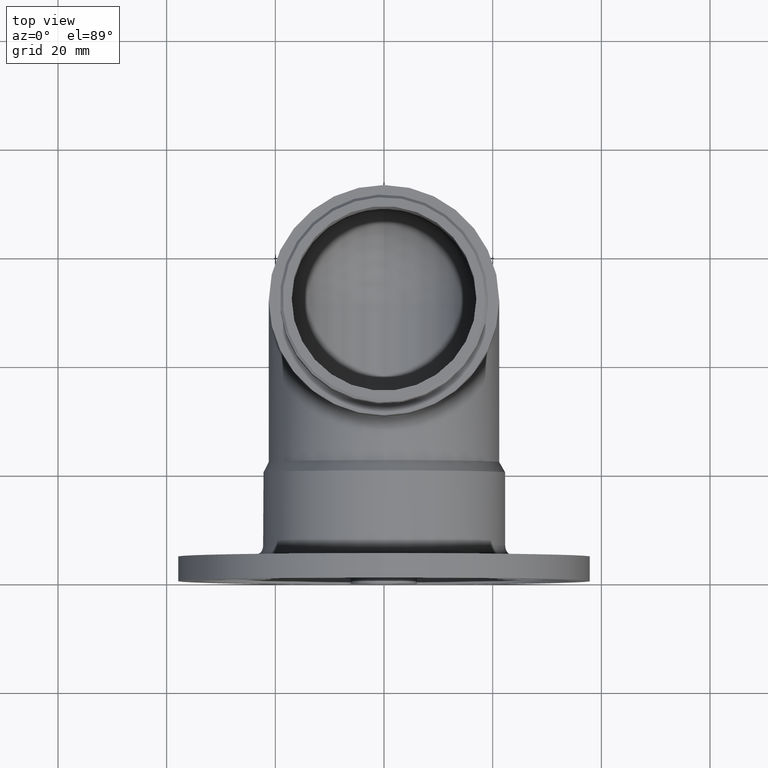
[diagram: clean part render]
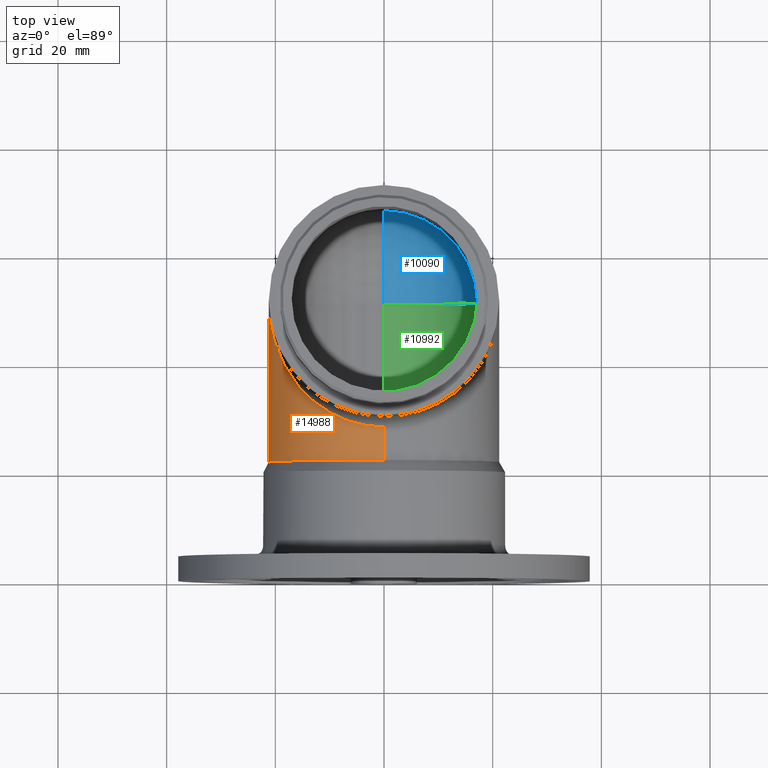
[diagram: same view with three faces highlighted in distinct colors, each labeled with its STEP entity id]
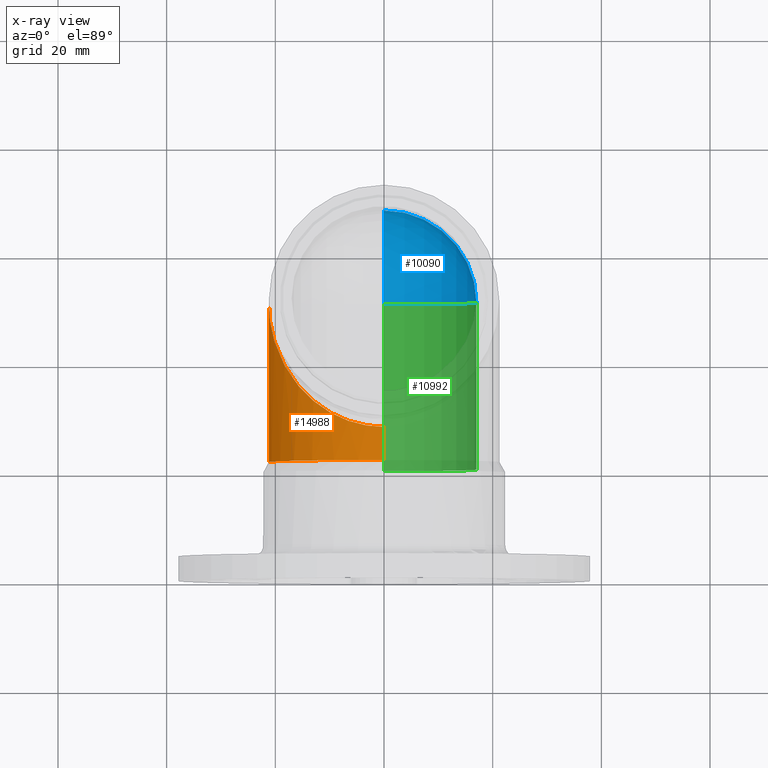
[diagram: x-ray of the same camera — body ghosted, the three highlighted faces saturated]
A machine part, top view with three faces highlighted in distinct colors.
The next image is the same camera in x-ray (body ghosted, the three faces saturated) — at least one of them is partly hidden behind the body in this view.
Their STEP definitions:

[orange] entity #14988 — the highlighted cylindrical surface (partial cylindrical patch) has radius 21.2 mm, axis along (0, -1, 0).
#192 = CARTESIAN_POINT ( 'NONE',  ( -21.19999999999999600, 21.90525588832578700, -6.938893903907228400E-015 ) ) ;
#601 = DIRECTION ( 'NONE',  ( -2.192750485135992100E-016, -1.000000000000000000, -0.0000000000000000000 ) ) ;
#1264 = CARTESIAN_POINT ( 'NONE',  ( -21.19999999999999600, 111.1626550446192600, -6.938893903907228400E-015 ) ) ;
#1359 = DIRECTION ( 'NONE',  ( 0.0000000000000000000, 0.0000000000000000000, -1.000000000000000000 ) ) ;
#1761 = CARTESIAN_POINT ( 'NONE',  ( 3.469446951953614200E-015, 111.1626550446192600, 21.19999999999999600 ) ) ;
#1785 = VERTEX_POINT ( 'NONE', #192 ) ;
#1985 = FACE_OUTER_BOUND ( 'NONE', #14198, .T. ) ;
#2359 = CYLINDRICAL_SURFACE ( 'NONE', #13040, 21.19999999999999900 ) ;
#2383 = CARTESIAN_POINT ( 'NONE',  ( 3.469446951953612200E-015, 21.90525588832578300, 21.20000000000000300 ) ) ;
#2555 = VERTEX_POINT ( 'NONE', #3334 ) ;
#3334 = CARTESIAN_POINT ( 'NONE',  ( -21.19999999999999600, 51.20000000000002400, -3.469446951953614200E-015 ) ) ;
#3768 = CARTESIAN_POINT ( 'NONE',  ( 3.469446951953614200E-015, 28.00000000000002500, 21.19999999999999600 ) ) ;
#4409 = VECTOR ( 'NONE', #14081, 1000.000000000000000 ) ;
#4805 = VERTEX_POINT ( 'NONE', #2383 ) ;
#4919 = DIRECTION ( 'NONE',  ( 0.0000000000000000000, -1.000000000000000000, 0.0000000000000000000 ) ) ;
#5417 = CARTESIAN_POINT ( 'NONE',  ( -12.41867247769037700, 28.00000000000002500, 21.19999999999999200 ) ) ;
#5956 = LINE ( 'NONE', #1264, #13088 ) ;
#6174 = ORIENTED_EDGE ( 'NONE', *, *, #15889, .T. ) ;
#6247 = DIRECTION ( 'NONE',  ( 0.0000000000000000000, -1.000000000000000000, 0.0000000000000000000 ) ) ;
#6835 = CARTESIAN_POINT ( 'NONE',  ( 4.803276047615440900E-015, 21.90525588832578300, 0.0000000000000000000 ) ) ;
#8559 = VERTEX_POINT ( 'NONE', #3768 ) ;
#8716 = CARTESIAN_POINT ( 'NONE',  ( 3.469446951953614200E-015, 111.1626550446192600, -3.469446951953614200E-015 ) ) ;
#9439 = EDGE_CURVE ( 'NONE', #8559, #4805, #11741, .T. ) ;
#9999 = ORIENTED_EDGE ( 'NONE', *, *, #14022, .T. ) ;
#10811 = ORIENTED_EDGE ( 'NONE', *, *, #11052, .F. ) ;
#11048 = CIRCLE ( 'NONE', #15946, 21.20000000000000300 ) ;
#11052 = EDGE_CURVE ( 'NONE', #4805, #1785, #11048, .T. ) ;
#11119 = ORIENTED_EDGE ( 'NONE', *, *, #9439, .F. ) ;
#11729 =( BOUNDED_CURVE ( )  B_SPLINE_CURVE ( 3, ( #12502, #5417, #15027, #11832 ),
 .UNSPECIFIED., .F., .F. ) 
 B_SPLINE_CURVE_WITH_KNOTS ( ( 4, 4 ),
 ( 7.019610720368544500E-018, 1.570796326794896600 ),
 .UNSPECIFIED. ) 
 CURVE ( )  GEOMETRIC_REPRESENTATION_ITEM ( )  RATIONAL_B_SPLINE_CURVE ( ( 1.000000000000000000, 0.8047378541243649400, 0.8047378541243649400, 1.000000000000000000 ) ) 
 REPRESENTATION_ITEM ( '' )  );
#11741 = LINE ( 'NONE', #1761, #4409 ) ;
#11832 = CARTESIAN_POINT ( 'NONE',  ( -21.19999999999999600, 51.20000000000002400, -3.469446951953614200E-015 ) ) ;
#12502 = CARTESIAN_POINT ( 'NONE',  ( 3.469446951953614200E-015, 28.00000000000002500, 21.19999999999999600 ) ) ;
#13040 = AXIS2_PLACEMENT_3D ( 'NONE', #8716, #6247, #1359 ) ;
#13088 = VECTOR ( 'NONE', #4919, 1000.000000000000000 ) ;
#14022 = EDGE_CURVE ( 'NONE', #2555, #1785, #5956, .T. ) ;
#14081 = DIRECTION ( 'NONE',  ( 0.0000000000000000000, -1.000000000000000000, 0.0000000000000000000 ) ) ;
#14198 = EDGE_LOOP ( 'NONE', ( #10811, #11119, #6174, #9999 ) ) ;
#14988 = ADVANCED_FACE ( 'NONE', ( #1985 ), #2359, .T. ) ;
#15027 = CARTESIAN_POINT ( 'NONE',  ( -21.19999999999998900, 37.60975464705583700, 12.41867247769038200 ) ) ;
#15436 = DIRECTION ( 'NONE',  ( 1.000000000000000000, -1.636531581110195200E-016, 0.0000000000000000000 ) ) ;
#15889 = EDGE_CURVE ( 'NONE', #8559, #2555, #11729, .T. ) ;
#15946 = AXIS2_PLACEMENT_3D ( 'NONE', #6835, #601, #15436 ) ;

[blue] entity #10090 — the highlighted spherical surface has radius 17 mm.
#505 = VERTEX_POINT ( 'NONE', #3880 ) ;
#1801 = CIRCLE ( 'NONE', #15842, 17.00000000000000000 ) ;
#2865 = SPHERICAL_SURFACE ( 'NONE', #8319, 17.00000000000000000 ) ;
#3388 = EDGE_CURVE ( 'NONE', #9712, #505, #1801, .T. ) ;
#3586 = DIRECTION ( 'NONE',  ( 0.0000000000000000000, 4.081702296416016500E-016, -1.000000000000000000 ) ) ;
#3616 = FACE_OUTER_BOUND ( 'NONE', #14338, .T. ) ;
#3880 = CARTESIAN_POINT ( 'NONE',  ( 3.469446951953614200E-015, 68.20000000000001700, -4.427692703177301300E-016 ) ) ;
#3970 = CARTESIAN_POINT ( 'NONE',  ( 3.469446951953614200E-015, 51.20000000000001700, -3.469446951953614200E-015 ) ) ;
#5012 = DIRECTION ( 'NONE',  ( 0.0000000000000000000, -1.000000000000000000, 0.0000000000000000000 ) ) ;
#6108 = DIRECTION ( 'NONE',  ( 1.000000000000000000, 0.0000000000000000000, 0.0000000000000000000 ) ) ;
#6200 = VERTEX_POINT ( 'NONE', #15084 ) ;
#6335 = AXIS2_PLACEMENT_3D ( 'NONE', #10999, #5012, #13590 ) ;
#7014 = DIRECTION ( 'NONE',  ( 0.0000000000000000000, 0.0000000000000000000, 1.000000000000000000 ) ) ;
#7632 = CARTESIAN_POINT ( 'NONE',  ( 17.00000000000000700, 51.20000000000002400, -3.469446951953615000E-015 ) ) ;
#7678 = CIRCLE ( 'NONE', #10139, 17.00000000000000000 ) ;
#8319 = AXIS2_PLACEMENT_3D ( 'NONE', #3970, #6108, #3586 ) ;
#8466 = EDGE_CURVE ( 'NONE', #505, #6200, #7678, .T. ) ;
#9712 = VERTEX_POINT ( 'NONE', #7632 ) ;
#10090 = ADVANCED_FACE ( 'NONE', ( #3616 ), #2865, .F. ) ;
#10139 = AXIS2_PLACEMENT_3D ( 'NONE', #13322, #14473, #7014 ) ;
#10999 = CARTESIAN_POINT ( 'NONE',  ( 3.469446951953614200E-015, 51.20000000000001700, -3.469446951953614200E-015 ) ) ;
#11132 = CARTESIAN_POINT ( 'NONE',  ( 5.352986175202233300E-015, 51.20000000000001700, -3.469446951953614200E-015 ) ) ;
#11326 = ORIENTED_EDGE ( 'NONE', *, *, #3388, .T. ) ;
#12370 = DIRECTION ( 'NONE',  ( 0.0000000000000000000, -2.392722035830079000E-016, 1.000000000000000000 ) ) ;
#12812 = ORIENTED_EDGE ( 'NONE', *, *, #8466, .T. ) ;
#13233 = ORIENTED_EDGE ( 'NONE', *, *, #14983, .T. ) ;
#13322 = CARTESIAN_POINT ( 'NONE',  ( 3.469446951953615000E-015, 51.20000000000001700, -3.469446951953614200E-015 ) ) ;
#13590 = DIRECTION ( 'NONE',  ( 0.0000000000000000000, 0.0000000000000000000, -1.000000000000000000 ) ) ;
#14338 = EDGE_LOOP ( 'NONE', ( #11326, #12812, #13233 ) ) ;
#14473 = DIRECTION ( 'NONE',  ( -1.000000000000000000, 0.0000000000000000000, -0.0000000000000000000 ) ) ;
#14735 = DIRECTION ( 'NONE',  ( 0.0000000000000000000, -1.000000000000000000, -2.392722035830079000E-016 ) ) ;
#14983 = EDGE_CURVE ( 'NONE', #6200, #9712, #15874, .T. ) ;
#15084 = CARTESIAN_POINT ( 'NONE',  ( 3.469446951953615000E-015, 51.20000000000001700, -17.00000000000000400 ) ) ;
#15842 = AXIS2_PLACEMENT_3D ( 'NONE', #11132, #12370, #14735 ) ;
#15874 = CIRCLE ( 'NONE', #6335, 17.00000000000000000 ) ;

[green] entity #10992 — the highlighted cylindrical surface (partial cylindrical patch) has radius 17 mm, axis along (0, -1, 0).
#137 = VECTOR ( 'NONE', #15757, 1000.000000000000000 ) ;
#718 = FACE_OUTER_BOUND ( 'NONE', #6748, .T. ) ;
#1031 = CARTESIAN_POINT ( 'NONE',  ( 17.00000000000000700, 111.1626550446192600, -7.356384475033318900E-016 ) ) ;
#1874 = EDGE_CURVE ( 'NONE', #4133, #9712, #8027, .T. ) ;
#2338 = EDGE_CURVE ( 'NONE', #6200, #4811, #8982, .T. ) ;
#2962 = ORIENTED_EDGE ( 'NONE', *, *, #1874, .T. ) ;
#3987 = DIRECTION ( 'NONE',  ( 0.0000000000000000000, -1.000000000000000000, 0.0000000000000000000 ) ) ;
#4107 = CARTESIAN_POINT ( 'NONE',  ( 3.469446951953614200E-015, 111.1626550446192600, -3.469446951953614200E-015 ) ) ;
#4133 = VERTEX_POINT ( 'NONE', #13325 ) ;
#4440 = CIRCLE ( 'NONE', #10970, 17.00000000000000000 ) ;
#4481 = ORIENTED_EDGE ( 'NONE', *, *, #14983, .F. ) ;
#4811 = VERTEX_POINT ( 'NONE', #14955 ) ;
#4896 = ORIENTED_EDGE ( 'NONE', *, *, #8026, .F. ) ;
#5012 = DIRECTION ( 'NONE',  ( 0.0000000000000000000, -1.000000000000000000, 0.0000000000000000000 ) ) ;
#5110 = CARTESIAN_POINT ( 'NONE',  ( 3.469446951953615000E-015, 111.1626550446192600, -17.00000000000000400 ) ) ;
#5472 = CYLINDRICAL_SURFACE ( 'NONE', #14922, 17.00000000000000000 ) ;
#6200 = VERTEX_POINT ( 'NONE', #15084 ) ;
#6335 = AXIS2_PLACEMENT_3D ( 'NONE', #10999, #5012, #13590 ) ;
#6748 = EDGE_LOOP ( 'NONE', ( #4896, #2962, #4481, #8074 ) ) ;
#7632 = CARTESIAN_POINT ( 'NONE',  ( 17.00000000000000700, 51.20000000000002400, -3.469446951953615000E-015 ) ) ;
#7896 = DIRECTION ( 'NONE',  ( 8.881784197001252300E-016, 0.0000000000000000000, -1.000000000000000000 ) ) ;
#8004 = CARTESIAN_POINT ( 'NONE',  ( 3.469446951953614200E-015, 20.50000000000000400, -3.469446951953614200E-015 ) ) ;
#8026 = EDGE_CURVE ( 'NONE', #4133, #4811, #4440, .T. ) ;
#8027 = LINE ( 'NONE', #1031, #137 ) ;
#8074 = ORIENTED_EDGE ( 'NONE', *, *, #2338, .T. ) ;
#8802 = DIRECTION ( 'NONE',  ( 0.0000000000000000000, -1.000000000000000000, 0.0000000000000000000 ) ) ;
#8982 = LINE ( 'NONE', #5110, #12260 ) ;
#9712 = VERTEX_POINT ( 'NONE', #7632 ) ;
#10970 = AXIS2_PLACEMENT_3D ( 'NONE', #8004, #11583, #7896 ) ;
#10992 = ADVANCED_FACE ( 'NONE', ( #718 ), #5472, .F. ) ;
#10999 = CARTESIAN_POINT ( 'NONE',  ( 3.469446951953614200E-015, 51.20000000000001700, -3.469446951953614200E-015 ) ) ;
#11583 = DIRECTION ( 'NONE',  ( -0.0000000000000000000, 1.000000000000000000, -0.0000000000000000000 ) ) ;
#12260 = VECTOR ( 'NONE', #8802, 1000.000000000000000 ) ;
#12599 = DIRECTION ( 'NONE',  ( 0.0000000000000000000, 0.0000000000000000000, -1.000000000000000000 ) ) ;
#13325 = CARTESIAN_POINT ( 'NONE',  ( 17.00000000000000700, 20.50000000000000400, -2.102542699728473200E-015 ) ) ;
#13590 = DIRECTION ( 'NONE',  ( 0.0000000000000000000, 0.0000000000000000000, -1.000000000000000000 ) ) ;
#14922 = AXIS2_PLACEMENT_3D ( 'NONE', #4107, #3987, #12599 ) ;
#14955 = CARTESIAN_POINT ( 'NONE',  ( 3.469446951953615000E-015, 20.50000000000000400, -17.00000000000000400 ) ) ;
#14983 = EDGE_CURVE ( 'NONE', #6200, #9712, #15874, .T. ) ;
#15084 = CARTESIAN_POINT ( 'NONE',  ( 3.469446951953615000E-015, 51.20000000000001700, -17.00000000000000400 ) ) ;
#15757 = DIRECTION ( 'NONE',  ( 0.0000000000000000000, 1.000000000000000000, -0.0000000000000000000 ) ) ;
#15874 = CIRCLE ( 'NONE', #6335, 17.00000000000000000 ) ;